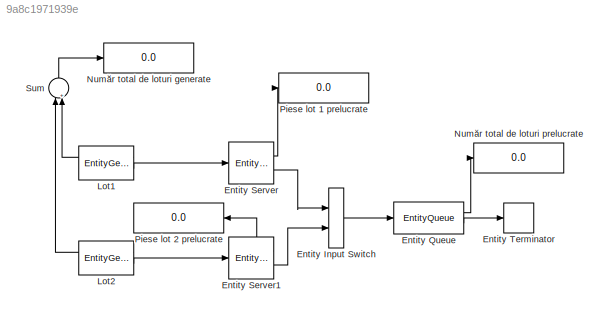
MODEL slx_9a8c1971939e
KIND model
CONFIG AbsTol = auto
CONFIG FixedStep = auto
CONFIG MaxStep = auto
CONFIG MinStep = auto
CONFIG RelTol = 1e-3
CONFIG SampleTimeConstraint = Unconstrained
CONFIG Solver = VariableStepDiscrete
CONFIG SolverMode = Auto
CONFIG SolverName = VariableStepDiscrete
CONFIG StartTime = 0.0
CONFIG StopTime = 960
BLOCK [EntityInputSwitch] Entity Input Switch
  InputPortMap = u1,u2
  InputPortMessageModes = m,m
  OutputPortMap = o0
  OutputPortMessageModes = m
  Ports = [2, 1]
BLOCK [EntityQueue] Entity Queue
  Capacity = inf
  InputPortMap = u0
  InputPortMessageModes = m
  NumberEntitiesDeparted = on
  OutputPortMap = o0,o5
  OutputPortMessageModes = n,m
  Ports = [1, 2]
BLOCK [EntityServer] Entity Server
  Capacity = 1
  InputPortMap = u2
  InputPortMessageModes = m
  NumberEntitiesDeparted = on
  OutputPortMap = o0,o9
  OutputPortMessageModes = n,m
  Ports = [1, 2]
  ServiceTimeAction = persistent init\nif isempty(init)\n    rng(125);\n    init = true;\nend\ndt = 14 + 8 * rand;
  ServiceTimeSource = MATLAB action
BLOCK [EntityServer] Entity Server1
  Capacity = 1
  InputPortMap = u2
  InputPortMessageModes = m
  NumberEntitiesDeparted = on
  OutputPortMap = o0,o9
  OutputPortMessageModes = n,m
  Ports = [1, 2]
  ServiceTimeAction = persistent init\nif isempty(init)\n    rng(126);\n    init = true;\nend\ndt = 14 + 8 * rand;
  ServiceTimeSource = MATLAB action
BLOCK [EntityTerminator] Entity Terminator
  InputPortMap = u0
  InputPortMessageModes = m
  Ports = [1]
BLOCK [EntityGenerator] Lot1
  EntityType = Structured
  EntityTypeName = Entity
  IntergenerationTimeAction = persistent init\nif isempty(init)\n    rng(123);\n    init = true;\nend\ndt = 25 + 10 * rand;
  NumberEntitiesDeparted = on
  OutputPortMap = o0,o3
  OutputPortMessageModes = n,m
  Ports = [0, 2]
  TimeSource = MATLAB action
BLOCK [EntityGenerator] Lot2
  EntityType = Structured
  EntityTypeName = Entity
  IntergenerationTimeAction = persistent init\nif isempty(init)\n    rng(124);\n    init = true;\nend\ndt = 38 + 14 * rand;
  NumberEntitiesDeparted = on
  OutputPortMap = o0,o3
  OutputPortMessageModes = n,m
  Ports = [0, 2]
  TimeSource = MATLAB action
BLOCK [Display] Număr total de loturi generate
  Decimation = 1
  Ports = [1]
BLOCK [Display] Număr total de loturi prelucrate
  Decimation = 1
  InputPortMessageModes = m
  Ports = [1]
BLOCK [Display] Piese lot 1 prelucrate
  Decimation = 1
  Ports = [1]
BLOCK [Display] Piese lot 2 prelucrate
  Decimation = 1
  Ports = [1]
BLOCK [Sum] Sum
  InputSameDT = off
  Inputs = |++
  OutDataTypeStr = Inherit: Inherit via internal rule
  Ports = [2, 1]
  SaturateOnIntegerOverflow = off
LINE Entity Input Switch:1 -> Entity Queue:1
LINE Entity Queue:1 -> Număr total de loturi prelucrate:1
LINE Entity Queue:2 -> Entity Terminator:1
LINE Entity Server1:1 -> Piese lot 2 prelucrate:1
LINE Entity Server1:2 -> Entity Input Switch:2
LINE Entity Server:1 -> Piese lot 1 prelucrate:1
LINE Entity Server:2 -> Entity Input Switch:1
LINE Lot1:1 -> Sum:2
LINE Lot1:2 -> Entity Server:1
LINE Lot2:1 -> Sum:1
LINE Lot2:2 -> Entity Server1:1
LINE Sum:1 -> Număr total de loturi generate:1
